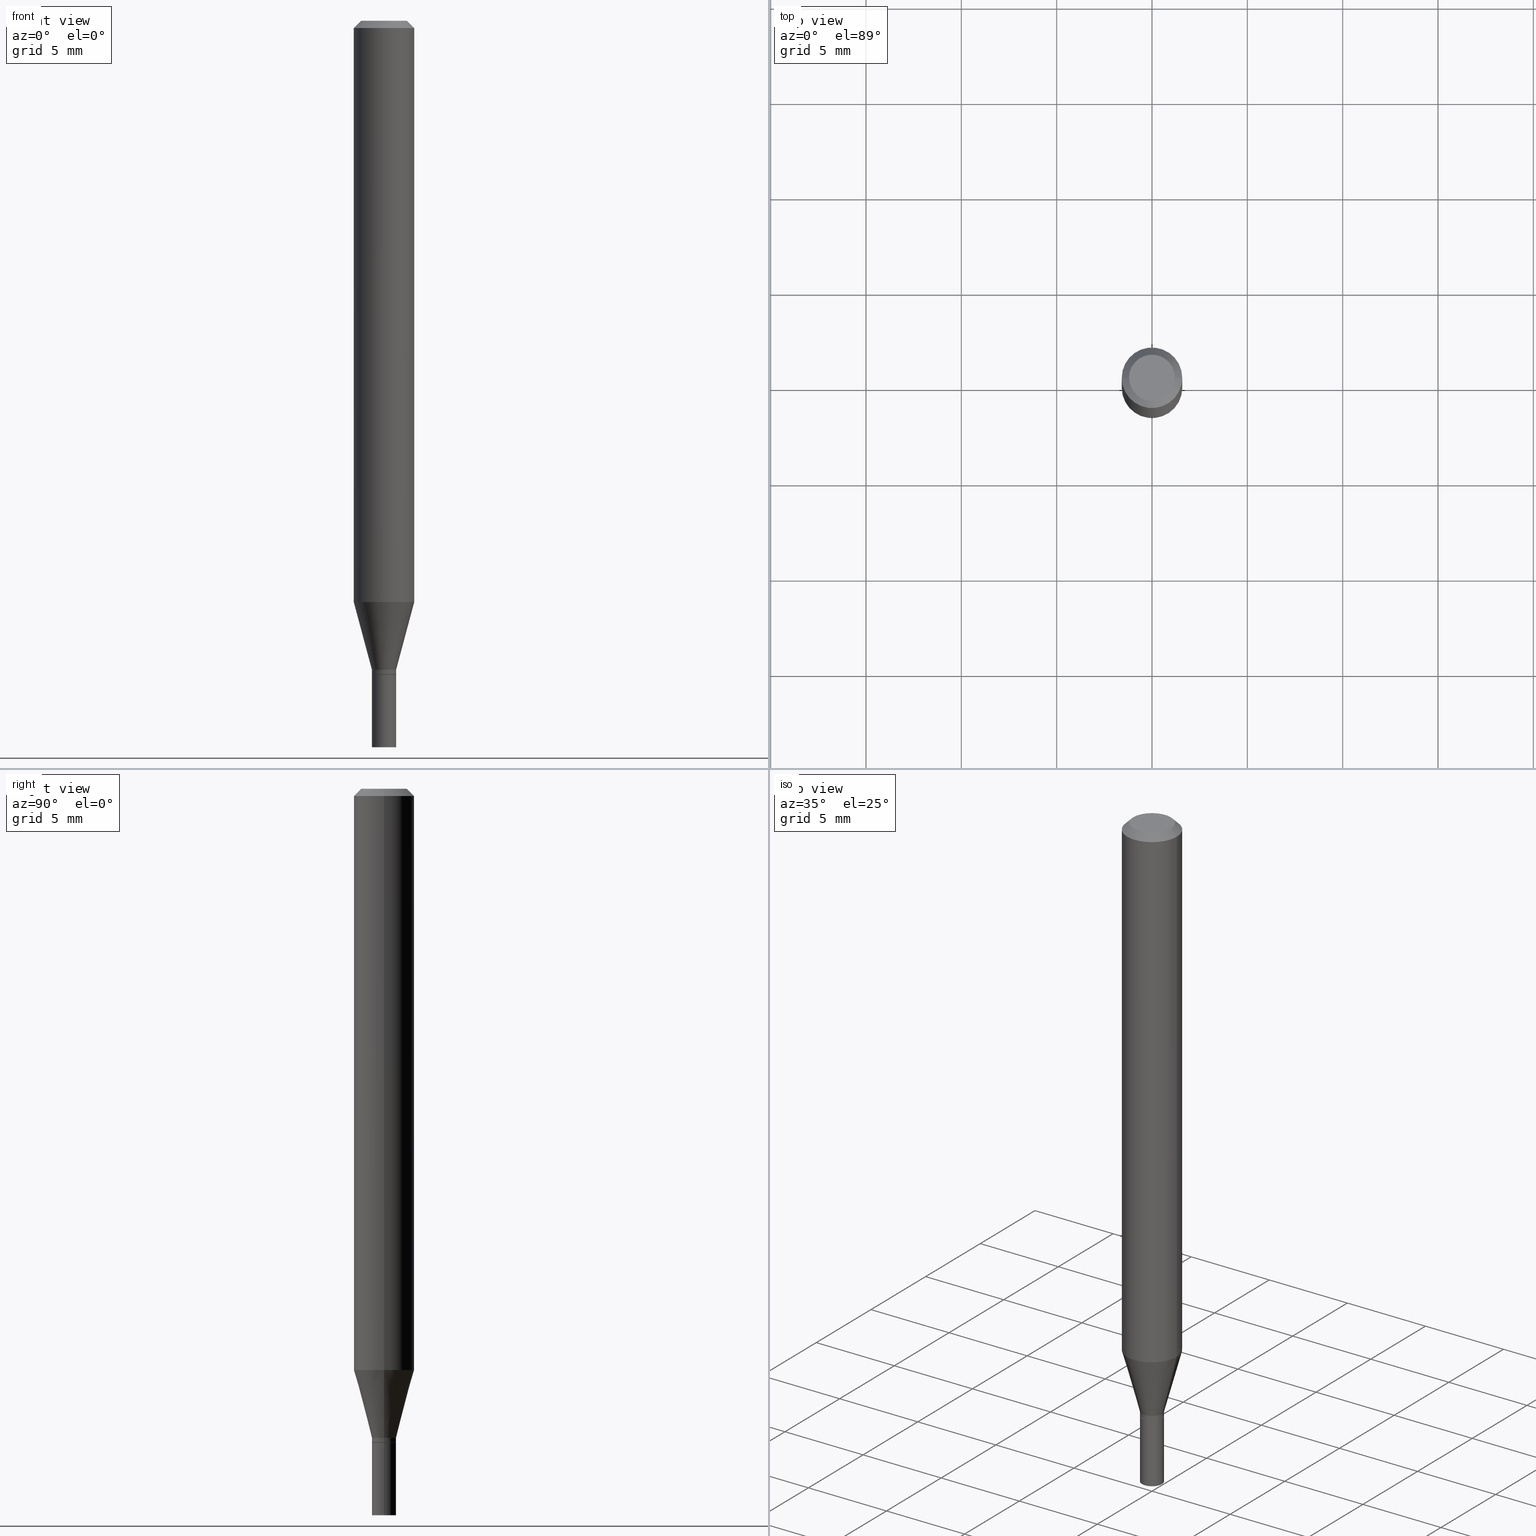
[diagram: canonical four-view strip — front | top / right | iso, engineering-drawing reading convention]
A machine part, canonical four-view strip (front | top / right | iso — engineering-drawing reading convention). The complete STEP part file that produces these views, byte-faithful:
ISO-10303-21;
HEADER;
FILE_DESCRIPTION (( 'STEP AP203' ),
    '1' );
FILE_NAME ('00559.STEP',
    '2024-03-19T21:42:15',
    ( '' ),
    ( '' ),
    'SwSTEP 2.0',
    'SolidWorks 2023',
    '' );
FILE_SCHEMA (( 'CONFIG_CONTROL_DESIGN' ));
ENDSEC;

DATA;
#1 = EDGE_LOOP ( 'NONE', ( #345, #267, #334, #328 ) ) ;
#2 = CARTESIAN_POINT ( 'NONE',  ( -0.04749999999999999362, 3.578768372314200645E-16, -5.475136966724983420E-16 ) ) ;
#3 = DIRECTION ( 'NONE',  ( 1.000000000000000000, -6.982962677686265922E-15, 4.876176775795935793E-29 ) ) ;
#4 = FACE_OUTER_BOUND ( 'NONE', #466, .T. ) ;
#5 = DATE_AND_TIME ( #381, #219 ) ;
#6 = VECTOR ( 'NONE', #61, 39.37007874015748143 ) ;
#7 = CARTESIAN_POINT ( 'NONE',  ( 3.301382888349935078E-29, -4.713499807438246596E-15, -1.350000000000000089 ) ) ;
#8 = CARTESIAN_POINT ( 'NONE',  ( -0.02499999999999992506, -4.500949310109791320E-15, -1.340000000000000080 ) ) ;
#9 = DIRECTION ( 'NONE',  ( 1.000000000000000000, -6.982962677686276177E-15, 0.000000000000000000 ) ) ;
#10 = CARTESIAN_POINT ( 'NONE',  ( -0.02500000000000000139, -4.797725223911457182E-15, -1.500000000000000222 ) ) ;
#11 = APPROVAL_DATE_TIME ( #194, #414 ) ;
#12 = CLOSED_SHELL ( 'NONE', ( #222, #46, #121, #77, #98, #130, #225, #247, #78, #144, #122, #376 ) ) ;
#13 = DIRECTION ( 'NONE',  ( 1.000000000000000000, 0.000000000000000000, 0.000000000000000000 ) ) ;
#14 = CIRCLE ( 'NONE', #353, 0.02500000000000000139 ) ;
#15 = CARTESIAN_POINT ( 'NONE',  ( 1.338927666171699620E-44, -1.911633854693045944E-30, -5.475136966724958768E-16 ) ) ;
#16 = CYLINDRICAL_SURFACE ( 'NONE', #360, 0.02499999999999992506 ) ;
#17 = EDGE_CURVE ( 'NONE', #387, #350, #373, .T. ) ;
#18 = VERTEX_POINT ( 'NONE', #191 ) ;
#19 = CARTESIAN_POINT ( 'NONE',  ( 0.04749999999999999362, -4.035134999187587991E-16, -5.475136966724933130E-16 ) ) ;
#20 = PLANE ( 'NONE',  #197 ) ;
#21 = LINE ( 'NONE', #412, #213 ) ;
#22 = VECTOR ( 'NONE', #281, 39.37007874015748143 ) ;
#23 =( CONVERSION_BASED_UNIT ( 'INCH', #85 ) LENGTH_UNIT ( ) NAMED_UNIT ( #400 ) );
#24 = FACE_OUTER_BOUND ( 'NONE', #133, .T. ) ;
#25 = EDGE_CURVE ( 'NONE', #387, #67, #444, .T. ) ;
#26 = CIRCLE ( 'NONE', #117, 0.02499999999999992506 ) ;
#27 = CARTESIAN_POINT ( 'NONE',  ( 3.276928200288083533E-29, -4.678584994049815735E-15, -1.340000000000000080 ) ) ;
#28 = ORIENTED_EDGE ( 'NONE', *, *, #337, .T. ) ;
#29 = EDGE_LOOP ( 'NONE', ( #172, #102, #237, #348 ) ) ;
#30 = LOCAL_TIME ( 17, 42, 15.00000000000000000, #69 ) ;
#31 = ORIENTED_EDGE ( 'NONE', *, *, #346, .T. ) ;
#32 = CARTESIAN_POINT ( 'NONE',  ( 0.02450000000000000094, -4.884582393041560256E-15, -1.350000000000000089 ) ) ;
#33 = PERSON_AND_ORGANIZATION_ROLE ( 'creator' ) ;
#34 = ORIENTED_EDGE ( 'NONE', *, *, #25, .T. ) ;
#35 = EDGE_CURVE ( 'NONE', #459, #180, #224, .T. ) ;
#36 = ORIENTED_EDGE ( 'NONE', *, *, #454, .T. ) ;
#37 = CARTESIAN_POINT ( 'NONE',  ( -0.02450000000000000094, -4.536767610002911878E-15, -1.350000000000000089 ) ) ;
#38 = DIRECTION ( 'NONE',  ( -2.445468806185136597E-29, 3.491481338843145583E-15, 1.000000000000000000 ) ) ;
#39 = PERSON_AND_ORGANIZATION_ROLE ( 'classification_officer' ) ;
#40 = AXIS2_PLACEMENT_3D ( 'NONE', #80, #354, #187 ) ;
#41 = CARTESIAN_POINT ( 'NONE',  ( -0.06250000000000000000, 3.840629472727444916E-16, -0.01499999999999999944 ) ) ;
#42 = FACE_OUTER_BOUND ( 'NONE', #29, .T. ) ;
#43 = DIRECTION ( 'NONE',  ( 0.7071067811865656694, -2.468850131082446387E-15, 0.7071067811865294761 ) ) ;
#44 = CARTESIAN_POINT ( 'NONE',  ( 0.000000000000000000, 0.000000000000000000, 0.000000000000000000 ) ) ;
#45 = DIRECTION ( 'NONE',  ( 1.000000000000000000, -6.982962677686273810E-15, 0.000000000000000000 ) ) ;
#46 = ADVANCED_FACE ( 'NONE', ( #287 ), #87, .T. ) ;
#47 = PERSON_AND_ORGANIZATION_ROLE ( 'design_owner' ) ;
#48 = VECTOR ( 'NONE', #116, 39.37007874015748143 ) ;
#49 = VERTEX_POINT ( 'NONE', #10 ) ;
#50 = APPROVAL_PERSON_ORGANIZATION ( #416, #164, #465 ) ;
#51 = PERSON_AND_ORGANIZATION ( #84, #234 ) ;
#52 = EDGE_CURVE ( 'NONE', #329, #49, #351, .T. ) ;
#53 = FACE_OUTER_BOUND ( 'NONE', #207, .T. ) ;
#54 = CARTESIAN_POINT ( 'NONE',  ( 0.06250000000000000000, -4.888073874380388472E-16, -0.01499999999999999944 ) ) ;
#55 = APPROVAL_STATUS ( 'not_yet_approved' ) ;
#56 = CARTESIAN_POINT ( 'NONE',  ( 0.02500000000000000139, -1.745740669421566924E-16, 1.219044193948984123E-30 ) ) ;
#57 = AXIS2_PLACEMENT_3D ( 'NONE', #94, #154, #405 ) ;
#58 = LINE ( 'NONE', #380, #6 ) ;
#59 = DIRECTION ( 'NONE',  ( 1.000000000000000000, -6.982962677686276177E-15, 0.000000000000000000 ) ) ;
#60 = EDGE_CURVE ( 'NONE', #329, #174, #357, .T. ) ;
#61 = DIRECTION ( 'NONE',  ( 0.2588190451025211281, 1.565188264969623940E-15, 0.9659258262890682012 ) ) ;
#62 = MANIFOLD_SOLID_BREP ( 'Body-Move/Copy2[2]', #12 ) ;
#63 = VECTOR ( 'NONE', #305, 39.37007874015748143 ) ;
#64 = CC_DESIGN_PERSON_AND_ORGANIZATION_ASSIGNMENT ( #254, #403, ( #282 ) ) ;
#65 = ORIENTED_EDGE ( 'NONE', *, *, #396, .T. ) ;
#66 = CARTESIAN_POINT ( 'NONE',  ( 2.934680181550293043E-29, -4.189945528415769487E-15, -1.200048094716167135 ) ) ;
#67 = VERTEX_POINT ( 'NONE', #54 ) ;
#68 = DIRECTION ( 'NONE',  ( 1.000000000000000000, -6.982962677686265922E-15, 4.876176775795935793E-29 ) ) ;
#69 = COORDINATED_UNIVERSAL_TIME_OFFSET ( 5, 0, .BEHIND. ) ;
#70 = ORIENTED_EDGE ( 'NONE', *, *, #179, .F. ) ;
#71 = AXIS2_PLACEMENT_3D ( 'NONE', #402, #221, #358 ) ;
#72 = CARTESIAN_POINT ( 'NONE',  ( 3.300160153946842277E-29, -4.711754066768825092E-15, -1.349500000000000144 ) ) ;
#73 = VECTOR ( 'NONE', #43, 39.37007874015748143 ) ;
#74 = COORDINATED_UNIVERSAL_TIME_OFFSET ( 5, 0, .BEHIND. ) ;
#75 = ORIENTED_EDGE ( 'NONE', *, *, #445, .F. ) ;
#76 = FACE_OUTER_BOUND ( 'NONE', #446, .T. ) ;
#77 = ADVANCED_FACE ( 'NONE', ( #127 ), #259, .T. ) ;
#78 = ADVANCED_FACE ( 'NONE', ( #118 ), #20, .F. ) ;
#79 = ORIENTED_EDGE ( 'NONE', *, *, #278, .F. ) ;
#80 = CARTESIAN_POINT ( 'NONE',  ( 3.301382888349935078E-29, -4.713499807438246596E-15, -1.350000000000000089 ) ) ;
#81 = PERSON_AND_ORGANIZATION ( #84, #234 ) ;
#82 = CYLINDRICAL_SURFACE ( 'NONE', #397, 0.06250000000000000000 ) ;
#83 = DIRECTION ( 'NONE',  ( 1.000000000000000000, -6.982962677686267499E-15, 4.876176775795936353E-29 ) ) ;
#84 = PERSON ( 'UNSPECIFIED', 'UNSPECIFIED', 'UNSPECIFIED', ('UNSPECIFIED'), ('UNSPECIFIED'), ('UNSPECIFIED') ) ;
#85 = LENGTH_MEASURE_WITH_UNIT ( LENGTH_MEASURE( 0.02539999999999999897 ), #189 );
#86 = ORIENTED_EDGE ( 'NONE', *, *, #346, .F. ) ;
#87 = CONICAL_SURFACE ( 'NONE', #183, 0.02450000000000000094, 0.7853981633974739252 ) ;
#88 = AXIS2_PLACEMENT_3D ( 'NONE', #407, #228, #333 ) ;
#89 = LOCAL_TIME ( 17, 42, 15.00000000000000000, #286 ) ;
#90 = ORIENTED_EDGE ( 'NONE', *, *, #91, .F. ) ;
#91 = EDGE_CURVE ( 'NONE', #180, #67, #366, .T. ) ;
#92 = DIRECTION ( 'NONE',  ( -2.445468806185136597E-29, 3.491481338843145583E-15, 1.000000000000000000 ) ) ;
#93 = CARTESIAN_POINT ( 'NONE',  ( 0.06250000000000000000, -4.364351673553916694E-16, 3.047610484872459871E-30 ) ) ;
#94 = CARTESIAN_POINT ( 'NONE',  ( 3.276928200288083533E-29, -4.678584994049815735E-15, -1.340000000000000080 ) ) ;
#95 = AXIS2_PLACEMENT_3D ( 'NONE', #15, #162, #200 ) ;
#96 = AXIS2_PLACEMENT_3D ( 'NONE', #297, #97, #68 ) ;
#97 = DIRECTION ( 'NONE',  ( -2.438088387897960049E-29, 3.491481338843145188E-15, 1.000000000000000000 ) ) ;
#98 = ADVANCED_FACE ( 'NONE', ( #289 ), #448, .T. ) ;
#99 = ADVANCED_FACE ( 'NONE', ( #76 ), #393, .T. ) ;
#100 = DIRECTION ( 'NONE',  ( 2.438088387897960049E-29, -3.491481338843145188E-15, -1.000000000000000000 ) ) ;
#101 = CC_DESIGN_DATE_AND_TIME_ASSIGNMENT ( #264, #340, ( #282 ) ) ;
#102 = ORIENTED_EDGE ( 'NONE', *, *, #396, .F. ) ;
#103 = DIRECTION ( 'NONE',  ( -2.445468806185136597E-29, 3.491481338843145583E-15, 1.000000000000000000 ) ) ;
#104 = VECTOR ( 'NONE', #317, 39.37007874015748854 ) ;
#105 = ORIENTED_EDGE ( 'NONE', *, *, #421, .F. ) ;
#106 = CARTESIAN_POINT ( 'NONE',  ( 3.301382888349935078E-29, -4.713499807438246596E-15, -1.350000000000000089 ) ) ;
#107 = ORIENTED_EDGE ( 'NONE', *, *, #236, .F. ) ;
#108 = ORIENTED_EDGE ( 'NONE', *, *, #52, .T. ) ;
#109 = CIRCLE ( 'NONE', #168, 0.06250000000000000000 ) ;
#110 = LOCAL_TIME ( 17, 42, 15.00000000000000000, #126 ) ;
#111 = ORIENTED_EDGE ( 'NONE', *, *, #171, .F. ) ;
#112 = CARTESIAN_POINT ( 'NONE',  ( 3.276928200288083533E-29, -4.678584994049815735E-15, -1.340000000000000080 ) ) ;
#113 = ORIENTED_EDGE ( 'NONE', *, *, #454, .F. ) ;
#114 = DATE_AND_TIME ( #185, #30 ) ;
#115 = CYLINDRICAL_SURFACE ( 'NONE', #383, 0.02500000000000000139 ) ;
#116 = DIRECTION ( 'NONE',  ( -0.2588190451025211281, 5.211531920934548675E-15, 0.9659258262890682012 ) ) ;
#117 = AXIS2_PLACEMENT_3D ( 'NONE', #72, #173, #59 ) ;
#118 = FACE_OUTER_BOUND ( 'NONE', #362, .T. ) ;
#119 = DIRECTION ( 'NONE',  ( -2.445468806185136597E-29, 3.491481338843145583E-15, 1.000000000000000000 ) ) ;
#120 =( NAMED_UNIT ( * ) SI_UNIT ( $, .STERADIAN. ) SOLID_ANGLE_UNIT ( ) );
#121 = ADVANCED_FACE ( 'NONE', ( #313 ), #339, .T. ) ;
#122 = ADVANCED_FACE ( 'NONE', ( #4 ), #285, .T. ) ;
#123 = DIRECTION ( 'NONE',  ( -2.445468806185136597E-29, 3.491481338843145583E-15, 1.000000000000000000 ) ) ;
#124 = CONICAL_SURFACE ( 'NONE', #146, 0.02499999999999992506, 0.2617993877991497964 ) ;
#125 = APPROVAL_ROLE ( '' ) ;
#126 = COORDINATED_UNIVERSAL_TIME_OFFSET ( 5, 0, .BEHIND. ) ;
#127 = FACE_OUTER_BOUND ( 'NONE', #419, .T. ) ;
#128 = ORIENTED_EDGE ( 'NONE', *, *, #17, .T. ) ;
#129 = EDGE_CURVE ( 'NONE', #18, #463, #26, .T. ) ;
#130 = ADVANCED_FACE ( 'NONE', ( #268 ), #124, .T. ) ;
#131 = CONICAL_SURFACE ( 'NONE', #411, 0.06250000000000000000, 0.7853981633974667087 ) ;
#132 = DIRECTION ( 'NONE',  ( 1.000000000000000000, -6.982962677686270655E-15, 0.000000000000000000 ) ) ;
#133 = EDGE_LOOP ( 'NONE', ( #375, #245 ) ) ;
#134 = DIRECTION ( 'NONE',  ( -2.445468806185136597E-29, 3.491481338843145583E-15, 1.000000000000000000 ) ) ;
#135 = EDGE_CURVE ( 'NONE', #216, #276, #58, .T. ) ;
#136 = ADVANCED_FACE ( 'NONE', ( #464 ), #336, .F. ) ;
#137 = ORIENTED_EDGE ( 'NONE', *, *, #325, .T. ) ;
#138 = AXIS2_PLACEMENT_3D ( 'NONE', #413, #460, #410 ) ;
#139 = ORIENTED_EDGE ( 'NONE', *, *, #135, .F. ) ;
#140 = VERTEX_POINT ( 'NONE', #303 ) ;
#141 = CARTESIAN_POINT ( 'NONE',  ( 3.668203209277704895E-29, -5.237222008264718177E-15, -1.500000000000000222 ) ) ;
#142 = ORIENTED_EDGE ( 'NONE', *, *, #266, .T. ) ;
#143 = CARTESIAN_POINT ( 'NONE',  ( 0.000000000000000000, 0.000000000000000000, 0.000000000000000000 ) ) ;
#144 = ADVANCED_FACE ( 'NONE', ( #176 ), #170, .F. ) ;
#145 = CARTESIAN_POINT ( 'NONE',  ( 0.02499999999999992506, -1.745740669421561254E-16, 1.219044193948980270E-30 ) ) ;
#146 = AXIS2_PLACEMENT_3D ( 'NONE', #27, #457, #261 ) ;
#147 = DIRECTION ( 'NONE',  ( -2.445468806185136877E-29, 3.491481338843145188E-15, 1.000000000000000000 ) ) ;
#148 = DIRECTION ( 'NONE',  ( -2.445468806185136597E-29, 3.491481338843145583E-15, 1.000000000000000000 ) ) ;
#149 = CARTESIAN_POINT ( 'NONE',  ( 3.668203209277705088E-31, -5.237222008264718399E-17, -0.01499999999999999944 ) ) ;
#150 = CARTESIAN_POINT ( 'NONE',  ( 0.000000000000000000, 0.000000000000000000, 0.000000000000000000 ) ) ;
#151 = AXIS2_PLACEMENT_3D ( 'NONE', #253, #38, #188 ) ;
#152 = EDGE_LOOP ( 'NONE', ( #352, #270, #274, #107 ) ) ;
#153 = CALENDAR_DATE ( 2024, 19, 3 ) ;
#154 = DIRECTION ( 'NONE',  ( -2.445468806185136597E-29, 3.491481338843145583E-15, 1.000000000000000000 ) ) ;
#155 = ADVANCED_FACE ( 'NONE', ( #24 ), #418, .F. ) ;
#156 = PERSON_AND_ORGANIZATION ( #84, #234 ) ;
#157 = DIRECTION ( 'NONE',  ( -2.445468806185136877E-29, 3.491481338843145188E-15, 1.000000000000000000 ) ) ;
#158 = CARTESIAN_POINT ( 'NONE',  ( -0.06250000000000000000, 4.440892098500626162E-16, -3.074334431409316114E-30 ) ) ;
#159 = VECTOR ( 'NONE', #232, 39.37007874015748143 ) ;
#160 =( NAMED_UNIT ( * ) PLANE_ANGLE_UNIT ( ) SI_UNIT ( $, .RADIAN. ) );
#161 = AXIS2_PLACEMENT_3D ( 'NONE', #406, #310, #181 ) ;
#162 = DIRECTION ( 'NONE',  ( -2.445468806185136597E-29, 3.491481338843145583E-15, 1.000000000000000000 ) ) ;
#163 = CC_DESIGN_APPROVAL ( #434, ( #282 ) ) ;
#164 = APPROVAL ( #462, 'UNSPECIFIED' ) ;
#165 = APPROVAL_DATE_TIME ( #198, #434 ) ;
#166 = DIRECTION ( 'NONE',  ( -1.000000000000000000, 6.982962677686265922E-15, -4.876176775795935793E-29 ) ) ;
#167 = VECTOR ( 'NONE', #295, 39.37007874015748143 ) ;
#168 = AXIS2_PLACEMENT_3D ( 'NONE', #320, #452, #227 ) ;
#169 = CC_DESIGN_SECURITY_CLASSIFICATION ( #299, ( #201 ) ) ;
#170 = PLANE ( 'NONE',  #138 ) ;
#171 = EDGE_CURVE ( 'NONE', #241, #463, #341, .T. ) ;
#172 = ORIENTED_EDGE ( 'NONE', *, *, #25, .F. ) ;
#173 = DIRECTION ( 'NONE',  ( -2.445468806185136597E-29, 3.491481338843145583E-15, 1.000000000000000000 ) ) ;
#174 = VERTEX_POINT ( 'NONE', #370 ) ;
#175 = EDGE_LOOP ( 'NONE', ( #108, #217, #203, #178 ) ) ;
#176 = FACE_OUTER_BOUND ( 'NONE', #326, .T. ) ;
#177 = APPROVAL_PERSON_ORGANIZATION ( #51, #434, #257 ) ;
#178 = ORIENTED_EDGE ( 'NONE', *, *, #60, .F. ) ;
#179 = EDGE_CURVE ( 'NONE', #140, #174, #14, .T. ) ;
#180 = VERTEX_POINT ( 'NONE', #300 ) ;
#181 = DIRECTION ( 'NONE',  ( 1.000000000000000000, -6.982962677686276177E-15, 0.000000000000000000 ) ) ;
#182 = EDGE_CURVE ( 'NONE', #276, #459, #199, .T. ) ;
#183 = AXIS2_PLACEMENT_3D ( 'NONE', #443, #119, #45 ) ;
#184 = CIRCLE ( 'NONE', #461, 0.02500000000000000139 ) ;
#185 = CALENDAR_DATE ( 2024, 19, 3 ) ;
#186 = DIRECTION ( 'NONE',  ( -2.445468806185136597E-29, 3.491481338843145583E-15, 1.000000000000000000 ) ) ;
#187 = DIRECTION ( 'NONE',  ( 1.000000000000000000, -6.982962677686273810E-15, 0.000000000000000000 ) ) ;
#188 = DIRECTION ( 'NONE',  ( 1.000000000000000000, -6.982962677686273810E-15, 0.000000000000000000 ) ) ;
#189 =( LENGTH_UNIT ( ) NAMED_UNIT ( * ) SI_UNIT ( $, .METRE. ) );
#190 = APPLICATION_PROTOCOL_DEFINITION ( 'international standard', 'config_control_design', 1994, #392 ) ;
#191 = CARTESIAN_POINT ( 'NONE',  ( 0.02499999999999992506, -4.886328133710981760E-15, -1.349500000000000144 ) ) ;
#192 = MECHANICAL_CONTEXT ( 'NONE', #332, 'mechanical' ) ;
#193 = EDGE_LOOP ( 'NONE', ( #240, #36, #428, #214 ) ) ;
#194 = DATE_AND_TIME ( #153, #89 ) ;
#195 = DIRECTION ( 'NONE',  ( -2.445468806185136597E-29, 3.491481338843145583E-15, 1.000000000000000000 ) ) ;
#196 = SHAPE_DEFINITION_REPRESENTATION ( #369, #244 ) ;
#197 = AXIS2_PLACEMENT_3D ( 'NONE', #451, #255, #252 ) ;
#198 = DATE_AND_TIME ( #408, #110 ) ;
#199 = CIRCLE ( 'NONE', #243, 0.06250000000000000000 ) ;
#200 = DIRECTION ( 'NONE',  ( 1.000000000000000000, -6.982962677686267499E-15, 4.852736867747366768E-29 ) ) ;
#201 = PRODUCT_DEFINITION_FORMATION_WITH_SPECIFIED_SOURCE ( 'ANY', '', #371, .NOT_KNOWN. ) ;
#202 = EDGE_LOOP ( 'NONE', ( #304, #409, #209, #90 ) ) ;
#203 = ORIENTED_EDGE ( 'NONE', *, *, #349, .F. ) ;
#204 = COORDINATED_UNIVERSAL_TIME_OFFSET ( 5, 0, .BEHIND. ) ;
#205 = DIRECTION ( 'NONE',  ( -2.445468806185136597E-29, 3.491481338843145583E-15, 1.000000000000000000 ) ) ;
#206 = CIRCLE ( 'NONE', #57, 0.02499999999999992506 ) ;
#207 = EDGE_LOOP ( 'NONE', ( #75, #306, #321, #113 ) ) ;
#208 = CARTESIAN_POINT ( 'NONE',  ( 0.02499999999999992506, -4.853159060991972403E-15, -1.340000000000000080 ) ) ;
#209 = ORIENTED_EDGE ( 'NONE', *, *, #278, .T. ) ;
#210 = EDGE_CURVE ( 'NONE', #459, #276, #307, .T. ) ;
#211 = ORIENTED_EDGE ( 'NONE', *, *, #312, .F. ) ;
#212 = LINE ( 'NONE', #41, #104 ) ;
#213 = VECTOR ( 'NONE', #147, 39.37007874015748143 ) ;
#214 = ORIENTED_EDGE ( 'NONE', *, *, #210, .F. ) ;
#215 = CARTESIAN_POINT ( 'NONE',  ( 3.301382888349935078E-29, -4.713499807438246596E-15, -1.350000000000000089 ) ) ;
#216 = VERTEX_POINT ( 'NONE', #208 ) ;
#217 = ORIENTED_EDGE ( 'NONE', *, *, #302, .T. ) ;
#218 = CARTESIAN_POINT ( 'NONE',  ( 3.668203209277705088E-31, -5.237222008264718399E-17, -0.01499999999999999944 ) ) ;
#219 = LOCAL_TIME ( 17, 42, 15.00000000000000000, #74 ) ;
#220 = CARTESIAN_POINT ( 'NONE',  ( 0.000000000000000000, 0.000000000000000000, 0.000000000000000000 ) ) ;
#221 = DIRECTION ( 'NONE',  ( -2.445468806185136597E-29, 3.491481338843145583E-15, 1.000000000000000000 ) ) ;
#222 = ADVANCED_FACE ( 'NONE', ( #272 ), #420, .T. ) ;
#223 = DIRECTION ( 'NONE',  ( 0.000000000000000000, 0.000000000000000000, 1.000000000000000000 ) ) ;
#224 = LINE ( 'NONE', #158, #167 ) ;
#225 = ADVANCED_FACE ( 'NONE', ( #239 ), #82, .T. ) ;
#226 = AXIS2_PLACEMENT_3D ( 'NONE', #386, #389, #83 ) ;
#227 = DIRECTION ( 'NONE',  ( 1.000000000000000000, -6.982962677686266711E-15, 0.000000000000000000 ) ) ;
#228 = DIRECTION ( 'NONE',  ( -2.445468806185136597E-29, 3.491481338843145583E-15, 1.000000000000000000 ) ) ;
#229 = CARTESIAN_POINT ( 'NONE',  ( 3.668203209277704895E-29, -5.237222008264718177E-15, -1.500000000000000222 ) ) ;
#230 = DIRECTION ( 'NONE',  ( -2.445468806185136877E-29, 3.491481338843145188E-15, 1.000000000000000000 ) ) ;
#231 = DIRECTION ( 'NONE',  ( 1.000000000000000000, -6.982962677686265922E-15, 4.876176775795935793E-29 ) ) ;
#232 = DIRECTION ( 'NONE',  ( -2.445468806185136877E-29, 3.491481338843145188E-15, 1.000000000000000000 ) ) ;
#233 = AXIS2_PLACEMENT_3D ( 'NONE', #112, #186, #9 ) ;
#234 = ORGANIZATION ( 'UNSPECIFIED', 'UNSPECIFIED', '' ) ;
#235 = CARTESIAN_POINT ( 'NONE',  ( -0.02450000000000000094, -4.539416837177022290E-15, -1.350000000000000089 ) ) ;
#236 = EDGE_CURVE ( 'NONE', #18, #216, #250, .T. ) ;
#237 = ORIENTED_EDGE ( 'NONE', *, *, #312, .T. ) ;
#238 = CIRCLE ( 'NONE', #40, 0.02450000000000000094 ) ;
#239 = FACE_OUTER_BOUND ( 'NONE', #202, .T. ) ;
#240 = ORIENTED_EDGE ( 'NONE', *, *, #266, .F. ) ;
#241 = VERTEX_POINT ( 'NONE', #37 ) ;
#242 = EDGE_LOOP ( 'NONE', ( #384, #34, #382, #211 ) ) ;
#243 = AXIS2_PLACEMENT_3D ( 'NONE', #455, #134, #132 ) ;
#244 = ADVANCED_BREP_SHAPE_REPRESENTATION ( '00559', ( #356, #62, #385 ), #280 ) ;
#245 = ORIENTED_EDGE ( 'NONE', *, *, #337, .F. ) ;
#246 = DIRECTION ( 'NONE',  ( 2.445468806185136597E-29, -3.491481338843145583E-15, -1.000000000000000000 ) ) ;
#247 = ADVANCED_FACE ( 'NONE', ( #42 ), #131, .T. ) ;
#248 = PERSON_AND_ORGANIZATION ( #84, #234 ) ;
#249 = LINE ( 'NONE', #32, #73 ) ;
#250 = LINE ( 'NONE', #145, #22 ) ;
#251 = AXIS2_PLACEMENT_3D ( 'NONE', #323, #123, #447 ) ;
#252 = DIRECTION ( 'NONE',  ( -1.000000000000000000, 6.982962677686265922E-15, -4.876176775795935793E-29 ) ) ;
#253 = CARTESIAN_POINT ( 'NONE',  ( 3.301382888349935078E-29, -4.713499807438246596E-15, -1.350000000000000089 ) ) ;
#254 = PERSON_AND_ORGANIZATION ( #84, #234 ) ;
#255 = DIRECTION ( 'NONE',  ( 2.438088387897960049E-29, -3.491481338843145188E-15, -1.000000000000000000 ) ) ;
#256 = AXIS2_PLACEMENT_3D ( 'NONE', #44, #431, #3 ) ;
#257 = APPROVAL_ROLE ( '' ) ;
#258 = CARTESIAN_POINT ( 'NONE',  ( 0.000000000000000000, 0.000000000000000000, 0.000000000000000000 ) ) ;
#259 = CYLINDRICAL_SURFACE ( 'NONE', #395, 0.06250000000000000000 ) ;
#260 = ORIENTED_EDGE ( 'NONE', *, *, #182, .F. ) ;
#261 = DIRECTION ( 'NONE',  ( 1.000000000000000000, -6.982962677686276177E-15, 0.000000000000000000 ) ) ;
#262 = AXIS2_PLACEMENT_3D ( 'NONE', #229, #364, #283 ) ;
#263 = AXIS2_PLACEMENT_3D ( 'NONE', #308, #100, #166 ) ;
#264 = DATE_AND_TIME ( #378, #399 ) ;
#265 = EDGE_CURVE ( 'NONE', #290, #241, #238, .T. ) ;
#266 = EDGE_CURVE ( 'NONE', #424, #459, #316, .T. ) ;
#267 = ORIENTED_EDGE ( 'NONE', *, *, #171, .T. ) ;
#268 = FACE_OUTER_BOUND ( 'NONE', #193, .T. ) ;
#269 = CC_DESIGN_PERSON_AND_ORGANIZATION_ASSIGNMENT ( #248, #391, ( #201 ) ) ;
#270 = ORIENTED_EDGE ( 'NONE', *, *, #445, .T. ) ;
#271 = AXIS2_PLACEMENT_3D ( 'NONE', #7, #148, #436 ) ;
#272 = FACE_OUTER_BOUND ( 'NONE', #152, .T. ) ;
#273 = EDGE_LOOP ( 'NONE', ( #456, #142, #260, #139 ) ) ;
#274 = ORIENTED_EDGE ( 'NONE', *, *, #335, .F. ) ;
#275 = DIRECTION ( 'NONE',  ( -2.445468806185136597E-29, 3.491481338843145583E-15, 1.000000000000000000 ) ) ;
#276 = VERTEX_POINT ( 'NONE', #437 ) ;
#277 = DIRECTION ( 'NONE',  ( -2.445468806185136597E-29, 3.491481338843145583E-15, 1.000000000000000000 ) ) ;
#278 = EDGE_CURVE ( 'NONE', #276, #67, #398, .T. ) ;
#279 = AXIS2_PLACEMENT_3D ( 'NONE', #141, #277, #315 ) ;
#280 =( GEOMETRIC_REPRESENTATION_CONTEXT ( 3 ) GLOBAL_UNCERTAINTY_ASSIGNED_CONTEXT ( ( #435 ) ) GLOBAL_UNIT_ASSIGNED_CONTEXT ( ( #23, #160, #120 ) ) REPRESENTATION_CONTEXT ( 'NONE', 'WORKASPACE' ) );
#281 = DIRECTION ( 'NONE',  ( -2.445468806185136877E-29, 3.491481338843145188E-15, 1.000000000000000000 ) ) ;
#282 = PRODUCT_DEFINITION ( 'UNKNOWN', '', #201, #458 ) ;
#283 = DIRECTION ( 'NONE',  ( 1.000000000000000000, -6.982962677686254878E-15, 0.000000000000000000 ) ) ;
#284 = DIRECTION ( 'NONE',  ( -2.445468806185136597E-29, 3.491481338843145583E-15, 1.000000000000000000 ) ) ;
#285 = CONICAL_SURFACE ( 'NONE', #151, 0.02450000000000000094, 0.7853981633974739252 ) ;
#286 = COORDINATED_UNIVERSAL_TIME_OFFSET ( 5, 0, .BEHIND. ) ;
#287 = FACE_OUTER_BOUND ( 'NONE', #1, .T. ) ;
#288 = CARTESIAN_POINT ( 'NONE',  ( -0.02499999999999992506, -4.534118382828800677E-15, -1.349500000000000144 ) ) ;
#289 = FACE_OUTER_BOUND ( 'NONE', #273, .T. ) ;
#290 = VERTEX_POINT ( 'NONE', #322 ) ;
#291 = CC_DESIGN_DATE_AND_TIME_ASSIGNMENT ( #114, #394, ( #299 ) ) ;
#292 = CIRCLE ( 'NONE', #251, 0.04749999999999999362 ) ;
#293 = APPROVAL_STATUS ( 'not_yet_approved' ) ;
#294 = LINE ( 'NONE', #296, #367 ) ;
#295 = DIRECTION ( 'NONE',  ( -2.445468806185136877E-29, 3.491481338843145188E-15, 1.000000000000000000 ) ) ;
#296 = CARTESIAN_POINT ( 'NONE',  ( -0.02499999999999992506, 1.776356839400245140E-16, -1.229733772563722802E-30 ) ) ;
#297 = CARTESIAN_POINT ( 'NONE',  ( 3.576687321579069994E-29, -5.368277968210015545E-15, -1.500000000000000222 ) ) ;
#298 = CIRCLE ( 'NONE', #271, 0.02450000000000000094 ) ;
#299 = SECURITY_CLASSIFICATION ( '', '', #355 ) ;
#300 = CARTESIAN_POINT ( 'NONE',  ( -0.06250000000000000000, -1.677069664399145667E-15, -0.01499999999999999944 ) ) ;
#301 = ORIENTED_EDGE ( 'NONE', *, *, #60, .T. ) ;
#302 = EDGE_CURVE ( 'NONE', #49, #140, #21, .T. ) ;
#303 = CARTESIAN_POINT ( 'NONE',  ( -0.02500000000000000139, -4.797725223911457182E-15, -1.350000000000000089 ) ) ;
#304 = ORIENTED_EDGE ( 'NONE', *, *, #35, .F. ) ;
#305 = DIRECTION ( 'NONE',  ( -0.7071067811865656694, 7.493145998870420424E-15, 0.7071067811865294761 ) ) ;
#306 = ORIENTED_EDGE ( 'NONE', *, *, #421, .T. ) ;
#307 = CIRCLE ( 'NONE', #344, 0.06250000000000000000 ) ;
#308 = CARTESIAN_POINT ( 'NONE',  ( 1.745740669421896767E-16, 0.02499999999999528988, -1.350000000000000089 ) ) ;
#309 = ORIENTED_EDGE ( 'NONE', *, *, #415, .F. ) ;
#310 = DIRECTION ( 'NONE',  ( -2.445468806185136597E-29, 3.491481338843145583E-15, 1.000000000000000000 ) ) ;
#311 = ORIENTED_EDGE ( 'NONE', *, *, #35, .T. ) ;
#312 = EDGE_CURVE ( 'NONE', #350, #180, #212, .T. ) ;
#313 = FACE_OUTER_BOUND ( 'NONE', #242, .T. ) ;
#314 = CIRCLE ( 'NONE', #279, 0.02500000000000000139 ) ;
#315 = DIRECTION ( 'NONE',  ( 1.000000000000000000, -6.982962677686254878E-15, 0.000000000000000000 ) ) ;
#316 = LINE ( 'NONE', #8, #48 ) ;
#317 = DIRECTION ( 'NONE',  ( -0.7071067811865604513, 2.468850131082393139E-15, -0.7071067811865343611 ) ) ;
#318 = DIRECTION ( 'NONE',  ( 1.000000000000000000, -6.982962677686266711E-15, 4.876176775795935793E-29 ) ) ;
#319 = DIRECTION ( 'NONE',  ( 2.445468806185136597E-29, -3.491481338843145583E-15, -1.000000000000000000 ) ) ;
#320 = CARTESIAN_POINT ( 'NONE',  ( 3.668203209277705088E-31, -5.237222008264718399E-17, -0.01499999999999999944 ) ) ;
#321 = ORIENTED_EDGE ( 'NONE', *, *, #236, .T. ) ;
#322 = CARTESIAN_POINT ( 'NONE',  ( 0.02450000000000000094, -4.884582393041560256E-15, -1.350000000000000089 ) ) ;
#323 = CARTESIAN_POINT ( 'NONE',  ( 1.338927666171699620E-44, -1.911633854693045944E-30, -5.475136966724958768E-16 ) ) ;
#324 = DIRECTION ( 'NONE',  ( 0.7071067811865604513, -7.319954787623298644E-15, -0.7071067811865343611 ) ) ;
#325 = EDGE_CURVE ( 'NONE', #290, #18, #249, .T. ) ;
#326 = EDGE_LOOP ( 'NONE', ( #422, #86 ) ) ;
#327 = DIRECTION ( 'NONE',  ( 1.000000000000000000, -6.982962677686267499E-15, 4.876176775795936353E-29 ) ) ;
#328 = ORIENTED_EDGE ( 'NONE', *, *, #325, .F. ) ;
#329 = VERTEX_POINT ( 'NONE', #433 ) ;
#330 = AXIS2_PLACEMENT_3D ( 'NONE', #149, #319, #440 ) ;
#332 = APPLICATION_CONTEXT ( 'configuration controlled 3d designs of mechanical parts and assemblies' ) ;
#331 = APPROVAL_PERSON_ORGANIZATION ( #156, #414, #125 ) ;
#333 = DIRECTION ( 'NONE',  ( 1.000000000000000000, -6.982962677686276177E-15, 0.000000000000000000 ) ) ;
#334 = ORIENTED_EDGE ( 'NONE', *, *, #129, .F. ) ;
#335 = EDGE_CURVE ( 'NONE', #216, #424, #374, .T. ) ;
#336 = PLANE ( 'NONE',  #263 ) ;
#337 = EDGE_CURVE ( 'NONE', #49, #329, #314, .T. ) ;
#338 = DIRECTION ( 'NONE',  ( 1.000000000000000000, -6.982962677686254878E-15, 0.000000000000000000 ) ) ;
#339 = CONICAL_SURFACE ( 'NONE', #330, 0.06250000000000000000, 0.7853981633974667087 ) ;
#340 = DATE_TIME_ROLE ( 'creation_date' ) ;
#341 = LINE ( 'NONE', #235, #63 ) ;
#342 = ORIENTED_EDGE ( 'NONE', *, *, #302, .F. ) ;
#343 = ORIENTED_EDGE ( 'NONE', *, *, #179, .T. ) ;
#344 = AXIS2_PLACEMENT_3D ( 'NONE', #66, #103, #377 ) ;
#345 = ORIENTED_EDGE ( 'NONE', *, *, #265, .T. ) ;
#346 = EDGE_CURVE ( 'NONE', #241, #290, #298, .T. ) ;
#347 = PERSON_AND_ORGANIZATION ( #84, #234 ) ;
#348 = ORIENTED_EDGE ( 'NONE', *, *, #91, .T. ) ;
#349 = EDGE_CURVE ( 'NONE', #174, #140, #184, .T. ) ;
#350 = VERTEX_POINT ( 'NONE', #2 ) ;
#351 = CIRCLE ( 'NONE', #262, 0.02500000000000000139 ) ;
#352 = ORIENTED_EDGE ( 'NONE', *, *, #129, .T. ) ;
#353 = AXIS2_PLACEMENT_3D ( 'NONE', #106, #205, #338 ) ;
#354 = DIRECTION ( 'NONE',  ( -2.445468806185136597E-29, 3.491481338843145583E-15, 1.000000000000000000 ) ) ;
#355 = SECURITY_CLASSIFICATION_LEVEL ( 'unclassified' ) ;
#356 = MANIFOLD_SOLID_BREP ( 'Body-Move/Copy2[1]', #426 ) ;
#357 = LINE ( 'NONE', #56, #159 ) ;
#358 = DIRECTION ( 'NONE',  ( 1.000000000000000000, -6.982962677686266711E-15, 0.000000000000000000 ) ) ;
#359 = VECTOR ( 'NONE', #324, 39.37007874015748854 ) ;
#360 = AXIS2_PLACEMENT_3D ( 'NONE', #401, #92, #231 ) ;
#361 = APPLICATION_PROTOCOL_DEFINITION ( 'international standard', 'config_control_design', 1994, #332 ) ;
#362 = EDGE_LOOP ( 'NONE', ( #65, #128 ) ) ;
#363 = CARTESIAN_POINT ( 'NONE',  ( -0.02499999999999992506, -4.123402814337749095E-15, -1.340000000000000080 ) ) ;
#364 = DIRECTION ( 'NONE',  ( -2.445468806185136597E-29, 3.491481338843145583E-15, 1.000000000000000000 ) ) ;
#365 = CARTESIAN_POINT ( 'NONE',  ( 0.06250000000000000000, -4.811533449433679005E-16, -0.01499999999999999944 ) ) ;
#366 = CIRCLE ( 'NONE', #71, 0.06250000000000000000 ) ;
#367 = VECTOR ( 'NONE', #157, 39.37007874015748143 ) ;
#368 = CC_DESIGN_APPROVAL ( #414, ( #299 ) ) ;
#369 = PRODUCT_DEFINITION_SHAPE ( 'NONE', 'NONE',  #282 ) ;
#370 = CARTESIAN_POINT ( 'NONE',  ( 0.02500000000000000139, -4.888073874380403263E-15, -1.350000000000000089 ) ) ;
#371 = PRODUCT ( '00559', '00559', '', ( #192 ) ) ;
#372 = ADVANCED_FACE ( 'NONE', ( #438 ), #115, .T. ) ;
#373 = CIRCLE ( 'NONE', #95, 0.04749999999999999362 ) ;
#374 = CIRCLE ( 'NONE', #233, 0.02499999999999992506 ) ;
#375 = ORIENTED_EDGE ( 'NONE', *, *, #52, .F. ) ;
#376 = ADVANCED_FACE ( 'NONE', ( #53 ), #16, .T. ) ;
#377 = DIRECTION ( 'NONE',  ( 1.000000000000000000, -6.982962677686270655E-15, 0.000000000000000000 ) ) ;
#378 = CALENDAR_DATE ( 2024, 19, 3 ) ;
#379 = ORIENTED_EDGE ( 'NONE', *, *, #182, .T. ) ;
#380 = CARTESIAN_POINT ( 'NONE',  ( 0.02499999999999992506, -4.853159060991972403E-15, -1.340000000000000080 ) ) ;
#381 = CALENDAR_DATE ( 2024, 19, 3 ) ;
#382 = ORIENTED_EDGE ( 'NONE', *, *, #415, .T. ) ;
#383 = AXIS2_PLACEMENT_3D ( 'NONE', #143, #430, #327 ) ;
#384 = ORIENTED_EDGE ( 'NONE', *, *, #17, .F. ) ;
#385 = AXIS2_PLACEMENT_3D ( 'NONE', #258, #223, #13 ) ;
#386 = CARTESIAN_POINT ( 'NONE',  ( 0.000000000000000000, 0.000000000000000000, 0.000000000000000000 ) ) ;
#387 = VERTEX_POINT ( 'NONE', #19 ) ;
#388 = DIRECTION ( 'NONE',  ( -1.000000000000000000, 6.982962677686266711E-15, 0.000000000000000000 ) ) ;
#389 = DIRECTION ( 'NONE',  ( -2.445468806185136597E-29, 3.491481338843145583E-15, 1.000000000000000000 ) ) ;
#390 = CC_DESIGN_PERSON_AND_ORGANIZATION_ASSIGNMENT ( #450, #47, ( #371 ) ) ;
#391 = PERSON_AND_ORGANIZATION_ROLE ( 'design_supplier' ) ;
#392 = APPLICATION_CONTEXT ( 'configuration controlled 3d designs of mechanical parts and assemblies' ) ;
#393 = CYLINDRICAL_SURFACE ( 'NONE', #226, 0.02500000000000000139 ) ;
#394 = DATE_TIME_ROLE ( 'classification_date' ) ;
#395 = AXIS2_PLACEMENT_3D ( 'NONE', #150, #195, #439 ) ;
#396 = EDGE_CURVE ( 'NONE', #350, #387, #292, .T. ) ;
#397 = AXIS2_PLACEMENT_3D ( 'NONE', #220, #284, #318 ) ;
#398 = LINE ( 'NONE', #93, #453 ) ;
#399 = LOCAL_TIME ( 17, 42, 15.00000000000000000, #204 ) ;
#400 = DIMENSIONAL_EXPONENTS ( 1.000000000000000000, 0.000000000000000000, 0.000000000000000000, 0.000000000000000000, 0.000000000000000000, 0.000000000000000000, 0.000000000000000000 ) ;
#401 = CARTESIAN_POINT ( 'NONE',  ( 0.000000000000000000, 0.000000000000000000, 0.000000000000000000 ) ) ;
#402 = CARTESIAN_POINT ( 'NONE',  ( 3.668203209277705088E-31, -5.237222008264718399E-17, -0.01499999999999999944 ) ) ;
#403 = PERSON_AND_ORGANIZATION_ROLE ( 'creator' ) ;
#404 = PRODUCT_RELATED_PRODUCT_CATEGORY ( 'detail', '', ( #371 ) ) ;
#405 = DIRECTION ( 'NONE',  ( 1.000000000000000000, -6.982962677686276177E-15, 0.000000000000000000 ) ) ;
#406 = CARTESIAN_POINT ( 'NONE',  ( 3.276928200288083533E-29, -4.678584994049815735E-15, -1.340000000000000080 ) ) ;
#407 = CARTESIAN_POINT ( 'NONE',  ( 3.300160153946842277E-29, -4.711754066768825092E-15, -1.349500000000000144 ) ) ;
#408 = CALENDAR_DATE ( 2024, 19, 3 ) ;
#409 = ORIENTED_EDGE ( 'NONE', *, *, #210, .T. ) ;
#410 = DIRECTION ( 'NONE',  ( 1.000000000000000000, -6.982962677686265922E-15, 4.876176775795935793E-29 ) ) ;
#411 = AXIS2_PLACEMENT_3D ( 'NONE', #218, #246, #388 ) ;
#412 = CARTESIAN_POINT ( 'NONE',  ( -0.02500000000000000139, 1.776356839400250563E-16, -1.229733772563726656E-30 ) ) ;
#413 = CARTESIAN_POINT ( 'NONE',  ( 3.301382888349935078E-29, -4.713499807438246596E-15, -1.350000000000000089 ) ) ;
#414 = APPROVAL ( #293, 'UNSPECIFIED' ) ;
#415 = EDGE_CURVE ( 'NONE', #67, #180, #109, .T. ) ;
#416 = PERSON_AND_ORGANIZATION ( #84, #234 ) ;
#417 = EDGE_LOOP ( 'NONE', ( #423, #343 ) ) ;
#418 = PLANE ( 'NONE',  #96 ) ;
#419 = EDGE_LOOP ( 'NONE', ( #379, #311, #309, #79 ) ) ;
#420 = CYLINDRICAL_SURFACE ( 'NONE', #256, 0.02499999999999992506 ) ;
#421 = EDGE_CURVE ( 'NONE', #463, #18, #427, .T. ) ;
#422 = ORIENTED_EDGE ( 'NONE', *, *, #265, .F. ) ;
#423 = ORIENTED_EDGE ( 'NONE', *, *, #349, .T. ) ;
#424 = VERTEX_POINT ( 'NONE', #363 ) ;
#425 = DIRECTION ( 'NONE',  ( 1.000000000000000000, -6.982962677686254878E-15, 0.000000000000000000 ) ) ;
#426 = CLOSED_SHELL ( 'NONE', ( #372, #155, #99, #136 ) ) ;
#427 = CIRCLE ( 'NONE', #88, 0.02499999999999992506 ) ;
#428 = ORIENTED_EDGE ( 'NONE', *, *, #135, .T. ) ;
#429 = CC_DESIGN_APPROVAL ( #164, ( #201 ) ) ;
#430 = DIRECTION ( 'NONE',  ( -2.445468806185136597E-29, 3.491481338843145583E-15, 1.000000000000000000 ) ) ;
#431 = DIRECTION ( 'NONE',  ( -2.445468806185136597E-29, 3.491481338843145583E-15, 1.000000000000000000 ) ) ;
#432 = APPROVAL_DATE_TIME ( #5, #164 ) ;
#433 = CARTESIAN_POINT ( 'NONE',  ( 0.02500000000000000139, -5.411796075206874844E-15, -1.500000000000000222 ) ) ;
#434 = APPROVAL ( #55, 'UNSPECIFIED' ) ;
#435 = UNCERTAINTY_MEASURE_WITH_UNIT (LENGTH_MEASURE( 1.000000000000000082E-05 ), #23, 'distance_accuracy_value', 'NONE');
#436 = DIRECTION ( 'NONE',  ( 1.000000000000000000, -6.982962677686273810E-15, 0.000000000000000000 ) ) ;
#437 = CARTESIAN_POINT ( 'NONE',  ( 0.06250000000000000000, -4.626380695771161156E-15, -1.200048094716167135 ) ) ;
#438 = FACE_OUTER_BOUND ( 'NONE', #175, .T. ) ;
#439 = DIRECTION ( 'NONE',  ( 1.000000000000000000, -6.982962677686266711E-15, 4.876176775795935793E-29 ) ) ;
#440 = DIRECTION ( 'NONE',  ( -1.000000000000000000, 6.982962677686266711E-15, 0.000000000000000000 ) ) ;
#441 = CC_DESIGN_PERSON_AND_ORGANIZATION_ASSIGNMENT ( #81, #39, ( #299 ) ) ;
#442 = CARTESIAN_POINT ( 'NONE',  ( -0.06250000000000000000, -3.745856318565706871E-15, -1.200048094716167135 ) ) ;
#443 = CARTESIAN_POINT ( 'NONE',  ( 3.301382888349935078E-29, -4.713499807438246596E-15, -1.350000000000000089 ) ) ;
#444 = LINE ( 'NONE', #365, #359 ) ;
#445 = EDGE_CURVE ( 'NONE', #463, #424, #294, .T. ) ;
#446 = EDGE_LOOP ( 'NONE', ( #342, #28, #301, #70 ) ) ;
#447 = DIRECTION ( 'NONE',  ( 1.000000000000000000, -6.982962677686267499E-15, 4.852736867747366768E-29 ) ) ;
#448 = CONICAL_SURFACE ( 'NONE', #161, 0.02499999999999992506, 0.2617993877991497964 ) ;
#449 = CC_DESIGN_PERSON_AND_ORGANIZATION_ASSIGNMENT ( #347, #33, ( #201 ) ) ;
#450 = PERSON_AND_ORGANIZATION ( #84, #234 ) ;
#451 = CARTESIAN_POINT ( 'NONE',  ( 3.316907271900976096E-16, 0.04749999999999999362, -4.396022119312973841E-16 ) ) ;
#452 = DIRECTION ( 'NONE',  ( -2.445468806185136597E-29, 3.491481338843145583E-15, 1.000000000000000000 ) ) ;
#453 = VECTOR ( 'NONE', #230, 39.37007874015748143 ) ;
#454 = EDGE_CURVE ( 'NONE', #424, #216, #206, .T. ) ;
#455 = CARTESIAN_POINT ( 'NONE',  ( 2.934680181550293043E-29, -4.189945528415769487E-15, -1.200048094716167135 ) ) ;
#456 = ORIENTED_EDGE ( 'NONE', *, *, #335, .T. ) ;
#457 = DIRECTION ( 'NONE',  ( -2.445468806185136597E-29, 3.491481338843145583E-15, 1.000000000000000000 ) ) ;
#458 = DESIGN_CONTEXT ( 'detailed design', #392, 'design' ) ;
#459 = VERTEX_POINT ( 'NONE', #442 ) ;
#460 = DIRECTION ( 'NONE',  ( -2.438088387897960049E-29, 3.491481338843145188E-15, 1.000000000000000000 ) ) ;
#461 = AXIS2_PLACEMENT_3D ( 'NONE', #215, #275, #425 ) ;
#462 = APPROVAL_STATUS ( 'not_yet_approved' ) ;
#463 = VERTEX_POINT ( 'NONE', #288 ) ;
#464 = FACE_OUTER_BOUND ( 'NONE', #417, .T. ) ;
#465 = APPROVAL_ROLE ( '' ) ;
#466 = EDGE_LOOP ( 'NONE', ( #111, #31, #137, #105 ) ) ;
ENDSEC;
END-ISO-10303-21;
